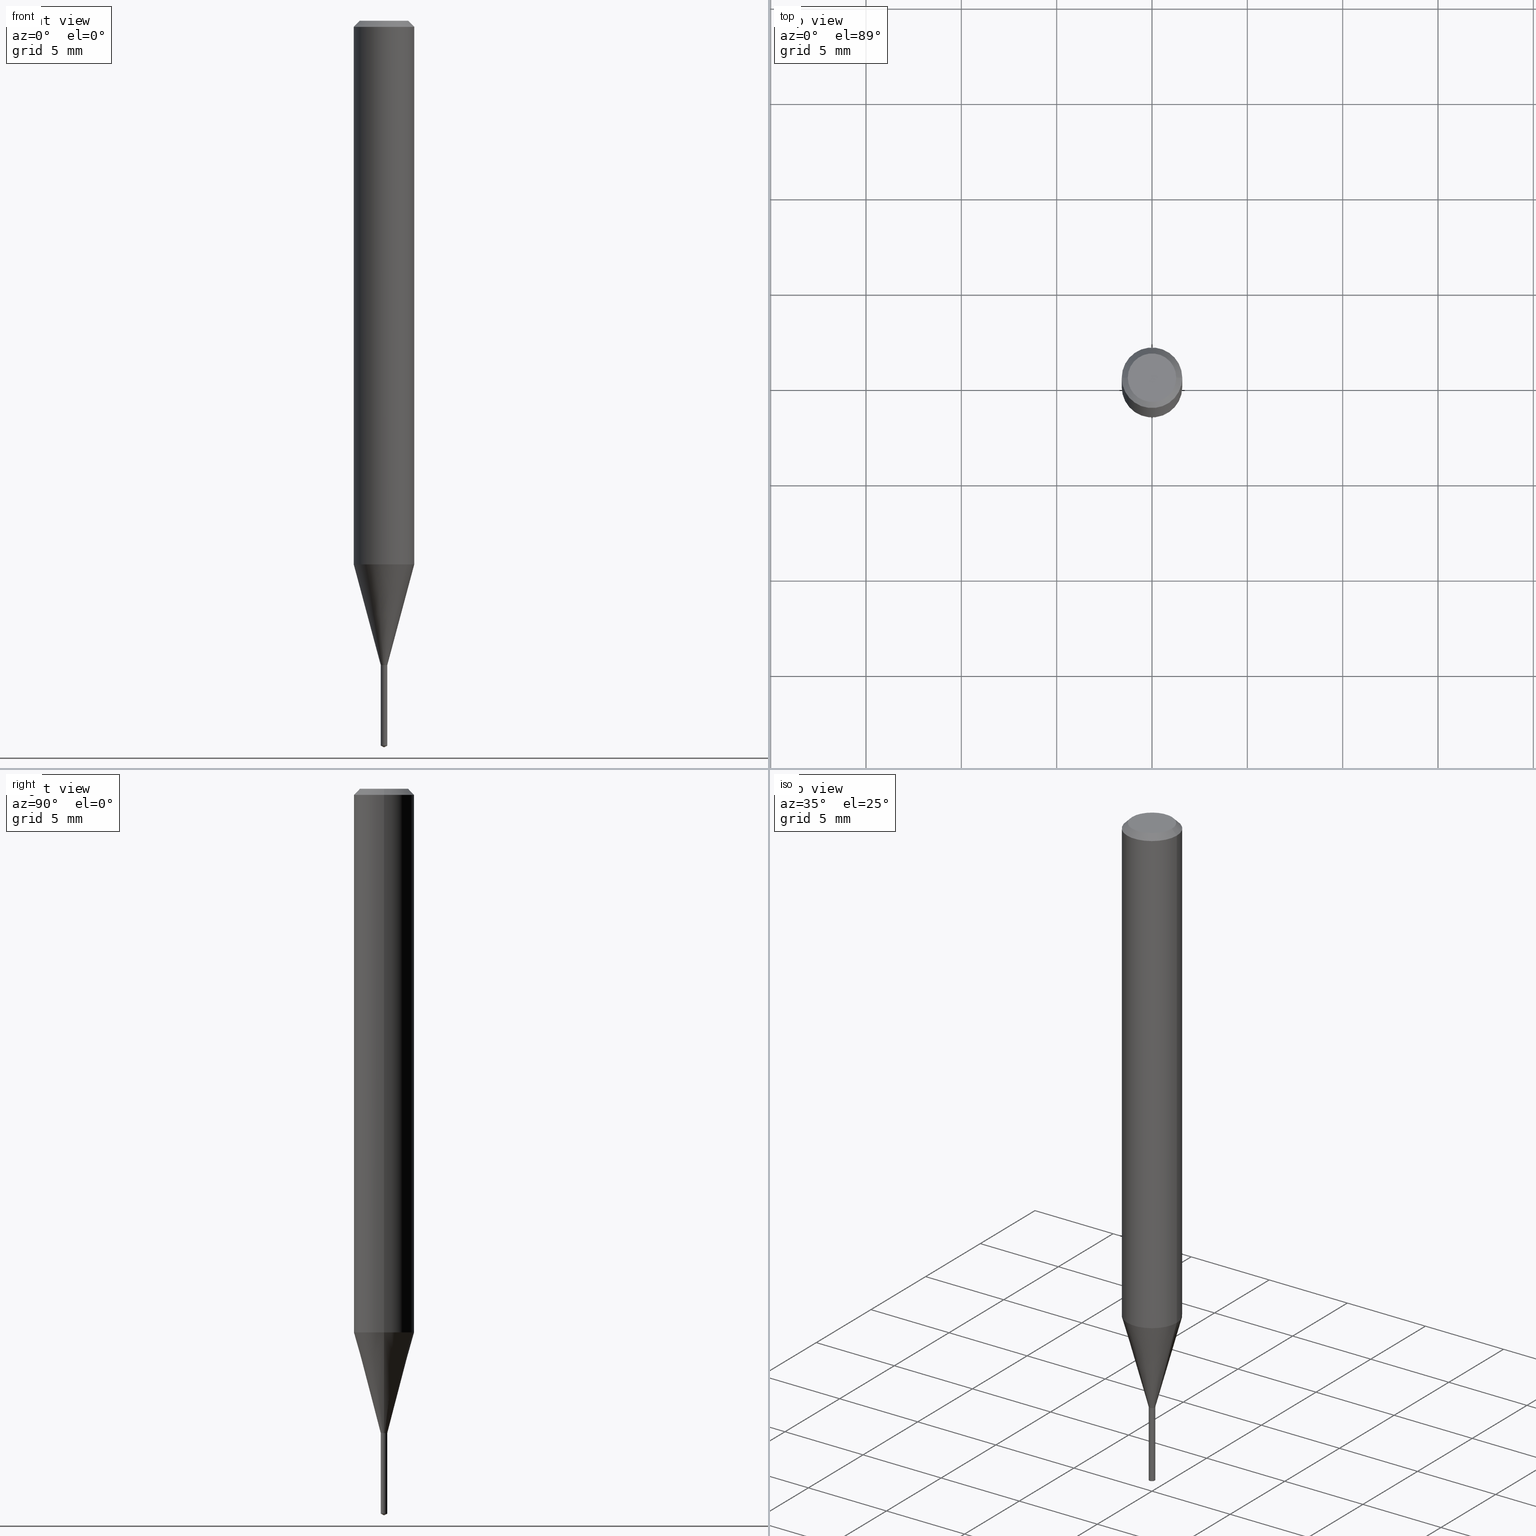
[diagram: canonical four-view strip — front | top / right | iso, engineering-drawing reading convention]
A machine part, canonical four-view strip (front | top / right | iso — engineering-drawing reading convention). The complete STEP part file that produces these views, byte-faithful:
ISO-10303-21;
HEADER;
FILE_DESCRIPTION (( 'STEP AP203' ),
    '1' );
FILE_NAME ('07106.STEP',
    '2024-04-23T19:30:16',
    ( '' ),
    ( '' ),
    'SwSTEP 2.0',
    'SolidWorks 2023',
    '' );
FILE_SCHEMA (( 'CONFIG_CONTROL_DESIGN' ));
ENDSEC;

DATA;
#1 = COORDINATED_UNIVERSAL_TIME_OFFSET ( 5, 0, .BEHIND. ) ;
#2 = CARTESIAN_POINT ( 'NONE',  ( 0.000000000000000000, 0.000000000000000000, 0.000000000000000000 ) ) ;
#3 = LENGTH_MEASURE_WITH_UNIT ( LENGTH_MEASURE( 0.02539999999999999897 ), #9 );
#4 = ADVANCED_FACE ( 'NONE', ( #37 ), #327, .T. ) ;
#5 = DIRECTION ( 'NONE',  ( 1.000000000000000000, -6.982962677686221745E-15, 0.000000000000000000 ) ) ;
#6 = CONICAL_SURFACE ( 'NONE', #266, 0.06250000000000000000, 0.7853981633974449483 ) ;
#7 = DIRECTION ( 'NONE',  ( 1.000000000000000000, -6.982962677686262766E-15, 0.000000000000000000 ) ) ;
#8 = EDGE_LOOP ( 'NONE', ( #234, #310, #256, #213 ) ) ;
#9 =( LENGTH_UNIT ( ) NAMED_UNIT ( * ) SI_UNIT ( $, .METRE. ) );
#10 = DIRECTION ( 'NONE',  ( -6.982962677686265133E-15, -1.000000000000000000, 0.000000000000000000 ) ) ;
#11 = EDGE_CURVE ( 'NONE', #91, #272, #414, .T. ) ;
#12 = DIRECTION ( 'NONE',  ( 1.000000000000000000, -6.982962677686266711E-15, 0.000000000000000000 ) ) ;
#13 = LINE ( 'NONE', #477, #33 ) ;
#14 = VECTOR ( 'NONE', #287, 39.37007874015748143 ) ;
#15 = CIRCLE ( 'NONE', #362, 0.04999999999999999584 ) ;
#16 = DIRECTION ( 'NONE',  ( -2.445468806185136597E-29, 3.491481338843145583E-15, 1.000000000000000000 ) ) ;
#17 = PERSON_AND_ORGANIZATION ( #38, #284 ) ;
#18 = APPLICATION_CONTEXT ( 'configuration controlled 3d designs of mechanical parts and assemblies' ) ;
#19 = LINE ( 'NONE', #285, #182 ) ;
#20 = EDGE_CURVE ( 'NONE', #272, #350, #485, .T. ) ;
#21 = ORIENTED_EDGE ( 'NONE', *, *, #136, .T. ) ;
#22 = PERSON_AND_ORGANIZATION_ROLE ( 'design_supplier' ) ;
#23 = DIRECTION ( 'NONE',  ( -2.441004968667903807E-29, 3.497873808233676026E-15, 1.000000000000000000 ) ) ;
#24 = ORIENTED_EDGE ( 'NONE', *, *, #274, .T. ) ;
#25 = CONICAL_SURFACE ( 'NONE', #89, 0.006249999999999997745, 0.7853981633978196486 ) ;
#26 = CC_DESIGN_APPROVAL ( #373, ( #58 ) ) ;
#27 = DIRECTION ( 'NONE',  ( -1.000000000000000000, 6.982962677686266711E-15, 0.000000000000000000 ) ) ;
#28 = EDGE_LOOP ( 'NONE', ( #371, #139, #88, #326 ) ) ;
#29 = CC_DESIGN_DATE_AND_TIME_ASSIGNMENT ( #389, #55, ( #376 ) ) ;
#30 = EDGE_LOOP ( 'NONE', ( #50, #335, #24, #288 ) ) ;
#31 = EDGE_LOOP ( 'NONE', ( #197, #184, #386, #126 ) ) ;
#32 = AXIS2_PLACEMENT_3D ( 'NONE', #377, #125, #190 ) ;
#33 = VECTOR ( 'NONE', #357, 39.37007874015748143 ) ;
#34 = DIRECTION ( 'NONE',  ( -2.441004968667903807E-29, 3.497873808233676026E-15, 1.000000000000000000 ) ) ;
#35 = ORIENTED_EDGE ( 'NONE', *, *, #59, .F. ) ;
#36 = DIRECTION ( 'NONE',  ( 1.000000000000000000, -6.982962677686296687E-15, 0.000000000000000000 ) ) ;
#37 = FACE_OUTER_BOUND ( 'NONE', #254, .T. ) ;
#38 = PERSON ( 'UNSPECIFIED', 'UNSPECIFIED', 'UNSPECIFIED', ('UNSPECIFIED'), ('UNSPECIFIED'), ('UNSPECIFIED') ) ;
#39 = AXIS2_PLACEMENT_3D ( 'NONE', #81, #413, #380 ) ;
#40 = DIRECTION ( 'NONE',  ( 1.000000000000000000, 0.000000000000000000, 0.000000000000000000 ) ) ;
#41 = DIRECTION ( 'NONE',  ( 2.445468806185136597E-29, -3.491481338843145583E-15, -1.000000000000000000 ) ) ;
#42 = DIRECTION ( 'NONE',  ( -2.445468806185136597E-29, 3.491481338843145583E-15, 1.000000000000000000 ) ) ;
#43 = CARTESIAN_POINT ( 'NONE',  ( 0.006750000000000003393, -4.692201771271302674E-15, -1.330400000000000027 ) ) ;
#44 = APPROVAL_ROLE ( '' ) ;
#45 = CARTESIAN_POINT ( 'NONE',  ( -0.006749999999999994720, -4.499518235112449476E-15, -1.274500000000000188 ) ) ;
#46 = FACE_OUTER_BOUND ( 'NONE', #472, .T. ) ;
#47 = CIRCLE ( 'NONE', #106, 0.06250000000000013878 ) ;
#48 = DIRECTION ( 'NONE',  ( -2.445468806185136877E-29, 3.491481338843145188E-15, 1.000000000000000000 ) ) ;
#49 = EDGE_CURVE ( 'NONE', #181, #175, #70, .T. ) ;
#50 = ORIENTED_EDGE ( 'NONE', *, *, #457, .F. ) ;
#51 = DATE_TIME_ROLE ( 'creation_date' ) ;
#52 = CARTESIAN_POINT ( 'NONE',  ( -0.006749999999999999056, 4.796163466380675584E-17, -3.320281185922061164E-31 ) ) ;
#53 = ORIENTED_EDGE ( 'NONE', *, *, #192, .F. ) ;
#54 = CARTESIAN_POINT ( 'NONE',  ( -4.132873053354867254E-48, 5.900647395337818946E-34, 1.690012582823346072E-19 ) ) ;
#55 = DATE_TIME_ROLE ( 'classification_date' ) ;
#56 = CARTESIAN_POINT ( 'NONE',  ( -8.265746106709734507E-48, 1.180129479067563789E-33, 3.380025165646692144E-19 ) ) ;
#57 = CIRCLE ( 'NONE', #391, 0.06250000000000000000 ) ;
#58 = PRODUCT_DEFINITION_FORMATION_WITH_SPECIFIED_SOURCE ( 'ANY', '', #355, .NOT_KNOWN. ) ;
#59 = EDGE_CURVE ( 'NONE', #114, #239, #423, .T. ) ;
#60 = CARTESIAN_POINT ( 'NONE',  ( 3.117972727886049049E-29, -4.451638707025011594E-15, -1.275000000000000133 ) ) ;
#61 = DIRECTION ( 'NONE',  ( -2.445468806185136597E-29, 3.491481338843145583E-15, 1.000000000000000000 ) ) ;
#62 = COORDINATED_UNIVERSAL_TIME_OFFSET ( 5, 0, .BEHIND. ) ;
#63 = CYLINDRICAL_SURFACE ( 'NONE', #405, 0.06250000000000006939 ) ;
#64 = ORIENTED_EDGE ( 'NONE', *, *, #388, .T. ) ;
#65 = ADVANCED_FACE ( 'NONE', ( #263 ), #217, .T. ) ;
#66 = CONICAL_SURFACE ( 'NONE', #399, 0.006249999999999997745, 0.7853981633978196486 ) ;
#67 = VERTEX_POINT ( 'NONE', #82 ) ;
#68 = ORIENTED_EDGE ( 'NONE', *, *, #11, .T. ) ;
#69 = CARTESIAN_POINT ( 'NONE',  ( 3.056836007731442729E-31, -4.364351673553962300E-17, -0.01250000000000008916 ) ) ;
#70 = LINE ( 'NONE', #450, #445 ) ;
#71 = AXIS2_PLACEMENT_3D ( 'NONE', #390, #396, #282 ) ;
#72 = VECTOR ( 'NONE', #364, 39.37007874015748143 ) ;
#73 = ADVANCED_FACE ( 'NONE', ( #415 ), #338, .F. ) ;
#74 = ORIENTED_EDGE ( 'NONE', *, *, #185, .F. ) ;
#75 = ORIENTED_EDGE ( 'NONE', *, *, #20, .F. ) ;
#76 = CARTESIAN_POINT ( 'NONE',  ( 0.06250000000000000000, -4.724246415962603826E-16, -0.01250000000000008916 ) ) ;
#77 = CARTESIAN_POINT ( 'NONE',  ( 4.203381359286017550E-28, 5.127806036372599119E-14, -1.274999999999999911 ) ) ;
#78 = ADVANCED_FACE ( 'NONE', ( #340 ), #25, .T. ) ;
#79 = AXIS2_PLACEMENT_3D ( 'NONE', #296, #444, #5 ) ;
#80 = CC_DESIGN_APPROVAL ( #336, ( #376 ) ) ;
#81 = CARTESIAN_POINT ( 'NONE',  ( 3.116749993482957368E-29, -4.449892966355590090E-15, -1.274500000000000188 ) ) ;
#82 = CARTESIAN_POINT ( 'NONE',  ( 3.661507453001856271E-29, -5.246810712350514039E-15, -1.500000000000000222 ) ) ;
#83 = LINE ( 'NONE', #121, #134 ) ;
#84 = FACE_OUTER_BOUND ( 'NONE', #140, .T. ) ;
#85 = DIRECTION ( 'NONE',  ( 0.000000000000000000, 0.000000000000000000, 1.000000000000000000 ) ) ;
#86 = EDGE_CURVE ( 'NONE', #239, #114, #260, .T. ) ;
#87 = DIRECTION ( 'NONE',  ( 0.2588190451025279559, 1.565188264969568522E-15, 0.9659258262890662028 ) ) ;
#88 = ORIENTED_EDGE ( 'NONE', *, *, #144, .T. ) ;
#89 = AXIS2_PLACEMENT_3D ( 'NONE', #265, #417, #118 ) ;
#90 = DIRECTION ( 'NONE',  ( 2.441004968667903807E-29, -3.497873808233676026E-15, -1.000000000000000000 ) ) ;
#91 = VERTEX_POINT ( 'NONE', #43 ) ;
#92 = CARTESIAN_POINT ( 'NONE',  ( -0.06250000000000000000, 3.927916506198520587E-16, -0.01250000000000008916 ) ) ;
#93 = PERSON_AND_ORGANIZATION_ROLE ( 'classification_officer' ) ;
#94 = CARTESIAN_POINT ( 'NONE',  ( 3.253451699748706005E-29, -4.645066773196920500E-15, -1.330400000000000027 ) ) ;
#95 = UNCERTAINTY_MEASURE_WITH_UNIT (LENGTH_MEASURE( 1.000000000000000082E-05 ), #229, 'distance_accuracy_value', 'NONE');
#96 = CARTESIAN_POINT ( 'NONE',  ( -0.06250000000000006939, 4.440892098500631092E-16, -3.074334431409319267E-30 ) ) ;
#97 = AXIS2_PLACEMENT_3D ( 'NONE', #2, #349, #312 ) ;
#98 = AXIS2_PLACEMENT_3D ( 'NONE', #428, #202, #475 ) ;
#99 = CALENDAR_DATE ( 2024, 23, 4 ) ;
#100 = FACE_OUTER_BOUND ( 'NONE', #179, .T. ) ;
#101 = ORIENTED_EDGE ( 'NONE', *, *, #361, .T. ) ;
#102 = PERSON_AND_ORGANIZATION_ROLE ( 'creator' ) ;
#103 = DIRECTION ( 'NONE',  ( 1.000000000000000000, -6.982962677686221745E-15, 0.000000000000000000 ) ) ;
#104 = ADVANCED_FACE ( 'NONE', ( #308 ), #189, .F. ) ;
#105 = ORIENTED_EDGE ( 'NONE', *, *, #353, .T. ) ;
#106 = AXIS2_PLACEMENT_3D ( 'NONE', #316, #16, #387 ) ;
#107 = LOCAL_TIME ( 15, 30, 16.00000000000000000, #191 ) ;
#108 = ORIENTED_EDGE ( 'NONE', *, *, #136, .F. ) ;
#109 = ORIENTED_EDGE ( 'NONE', *, *, #480, .F. ) ;
#110 = EDGE_CURVE ( 'NONE', #272, #175, #163, .T. ) ;
#111 = CARTESIAN_POINT ( 'NONE',  ( 0.04999999999999999584, -4.077247707424184705E-16, 3.380025165673154903E-19 ) ) ;
#112 = DIRECTION ( 'NONE',  ( -6.982962677686268288E-15, -1.000000000000000000, 3.520397390770522895E-15 ) ) ;
#113 = CIRCLE ( 'NONE', #32, 0.006749999999999999056 ) ;
#114 = VERTEX_POINT ( 'NONE', #305 ) ;
#115 = CYLINDRICAL_SURFACE ( 'NONE', #315, 0.006749999999999999056 ) ;
#116 = CC_DESIGN_PERSON_AND_ORGANIZATION_ASSIGNMENT ( #203, #93, ( #376 ) ) ;
#117 = DIRECTION ( 'NONE',  ( -0.7071067811868099184, 7.493145998871302371E-15, 0.7071067811862848940 ) ) ;
#118 = DIRECTION ( 'NONE',  ( 1.000000000000000000, -6.982962677686296687E-15, 0.000000000000000000 ) ) ;
#119 = APPROVAL_ROLE ( '' ) ;
#120 = CARTESIAN_POINT ( 'NONE',  ( 3.056836007731442729E-31, -4.364351673553962300E-17, -0.01250000000000008916 ) ) ;
#121 = CARTESIAN_POINT ( 'NONE',  ( 3.672990052264815419E-29, -5.230509915404661862E-15, -1.500000000000000222 ) ) ;
#122 = DIRECTION ( 'NONE',  ( 6.982962677686265922E-15, 1.000000000000000000, -3.497873808233676026E-15 ) ) ;
#123 = ORIENTED_EDGE ( 'NONE', *, *, #381, .F. ) ;
#124 = CARTESIAN_POINT ( 'NONE',  ( 3.661507453001856271E-29, -5.246810712350514039E-15, -1.500000000000000222 ) ) ;
#125 = DIRECTION ( 'NONE',  ( -2.441004968667903807E-29, 3.497873808233676026E-15, 1.000000000000000000 ) ) ;
#126 = ORIENTED_EDGE ( 'NONE', *, *, #283, .F. ) ;
#127 = VECTOR ( 'NONE', #403, 39.37007874015748854 ) ;
#128 = DIRECTION ( 'NONE',  ( -2.441004968667903807E-29, 3.497873808233676026E-15, 1.000000000000000000 ) ) ;
#129 = FACE_OUTER_BOUND ( 'NONE', #435, .T. ) ;
#130 = EDGE_CURVE ( 'NONE', #411, #292, #113, .T. ) ;
#131 = CARTESIAN_POINT ( 'NONE',  ( 3.117972727886049049E-29, -4.451638707025011594E-15, -1.275000000000000133 ) ) ;
#132 = AXIS2_PLACEMENT_3D ( 'NONE', #237, #231, #379 ) ;
#133 = DIRECTION ( 'NONE',  ( -2.445468806185136597E-29, 3.491481338843145583E-15, 1.000000000000000000 ) ) ;
#134 = VECTOR ( 'NONE', #264, 39.37007874015748854 ) ;
#135 = LOCAL_TIME ( 15, 30, 16.00000000000000000, #453 ) ;
#136 = EDGE_CURVE ( 'NONE', #183, #350, #148, .T. ) ;
#137 = APPROVAL_DATE_TIME ( #431, #373 ) ;
#138 = DIRECTION ( 'NONE',  ( -2.441004968667903807E-29, 3.497873808233676026E-15, 1.000000000000000000 ) ) ;
#139 = ORIENTED_EDGE ( 'NONE', *, *, #110, .T. ) ;
#140 = EDGE_LOOP ( 'NONE', ( #370, #143, #433, #408 ) ) ;
#141 = AXIS2_PLACEMENT_3D ( 'NONE', #462, #199, #455 ) ;
#142 = CIRCLE ( 'NONE', #174, 0.04999999999999999584 ) ;
#143 = ORIENTED_EDGE ( 'NONE', *, *, #255, .T. ) ;
#144 = EDGE_CURVE ( 'NONE', #175, #439, #209, .T. ) ;
#145 = DIRECTION ( 'NONE',  ( -6.982962677686265133E-15, -1.000000000000000000, 0.000000000000000000 ) ) ;
#146 = FACE_OUTER_BOUND ( 'NONE', #490, .T. ) ;
#147 = ORIENTED_EDGE ( 'NONE', *, *, #480, .T. ) ;
#148 = CIRCLE ( 'NONE', #352, 0.06250000000000013878 ) ;
#149 = CONICAL_SURFACE ( 'NONE', #195, 0.06250000000000000000, 0.7853981633974449483 ) ;
#150 = ADVANCED_FACE ( 'NONE', ( #158 ), #224, .F. ) ;
#151 = DIRECTION ( 'NONE',  ( 0.7071067811865451302, -7.319954787623248157E-15, -0.7071067811865499042 ) ) ;
#152 = DIRECTION ( 'NONE',  ( -2.445468806185136597E-29, 3.491481338843145583E-15, 1.000000000000000000 ) ) ;
#153 = DATE_AND_TIME ( #384, #267 ) ;
#154 = CARTESIAN_POINT ( 'NONE',  ( 3.056836007731442729E-31, -4.364351673553962300E-17, -0.01250000000000008916 ) ) ;
#155 = DIRECTION ( 'NONE',  ( -2.445468806185136877E-29, 3.491481338843145188E-15, 1.000000000000000000 ) ) ;
#156 = CONICAL_SURFACE ( 'NONE', #489, 84.42940631927268669, 1.134464013796308457 ) ;
#157 = AXIS2_PLACEMENT_3D ( 'NONE', #60, #138, #206 ) ;
#158 = FACE_OUTER_BOUND ( 'NONE', #215, .T. ) ;
#159 = ADVANCED_FACE ( 'NONE', ( #314 ), #6, .T. ) ;
#160 = ORIENTED_EDGE ( 'NONE', *, *, #283, .T. ) ;
#161 = MECHANICAL_CONTEXT ( 'NONE', #180, 'mechanical' ) ;
#162 = DIRECTION ( 'NONE',  ( -6.982962677686268288E-15, -1.000000000000000000, 3.520397390770522895E-15 ) ) ;
#163 = LINE ( 'NONE', #52, #398 ) ;
#164 = AXIS2_PLACEMENT_3D ( 'NONE', #369, #34, #145 ) ;
#165 = PRODUCT_RELATED_PRODUCT_CATEGORY ( 'detail', '', ( #355 ) ) ;
#166 = LOCAL_TIME ( 15, 30, 16.00000000000000000, #280 ) ;
#167 = DIRECTION ( 'NONE',  ( 1.000000000000000000, -6.982962677686266711E-15, 4.876176775795935793E-29 ) ) ;
#168 = FACE_OUTER_BOUND ( 'NONE', #31, .T. ) ;
#169 = DIRECTION ( 'NONE',  ( 1.000000000000000000, -6.982962677686265922E-15, 4.876194921942043128E-29 ) ) ;
#170 = ADVANCED_FACE ( 'NONE', ( #84 ), #375, .T. ) ;
#171 = PERSON_AND_ORGANIZATION ( #38, #284 ) ;
#172 = CIRCLE ( 'NONE', #277, 0.006249999999999997745 ) ;
#173 = CARTESIAN_POINT ( 'NONE',  ( -0.06250000000000000000, -1.537043932328202372E-15, -0.01250000000000008916 ) ) ;
#174 = AXIS2_PLACEMENT_3D ( 'NONE', #56, #471, #169 ) ;
#175 = VERTEX_POINT ( 'NONE', #45 ) ;
#176 = ADVANCED_BREP_SHAPE_REPRESENTATION ( '07106', ( #409, #230, #204 ), #406 ) ;
#177 = CARTESIAN_POINT ( 'NONE',  ( 0.06250000000000000000, -4.800786840909313294E-16, -0.01250000000000008916 ) ) ;
#178 = EDGE_LOOP ( 'NONE', ( #401, #290, #262 ) ) ;
#179 = EDGE_LOOP ( 'NONE', ( #21, #101, #74, #248 ) ) ;
#180 = APPLICATION_CONTEXT ( 'configuration controlled 3d designs of mechanical parts and assemblies' ) ;
#181 = VERTEX_POINT ( 'NONE', #459 ) ;
#182 = VECTOR ( 'NONE', #432, 39.37007874015748143 ) ;
#183 = VERTEX_POINT ( 'NONE', #420 ) ;
#184 = ORIENTED_EDGE ( 'NONE', *, *, #86, .T. ) ;
#185 = EDGE_CURVE ( 'NONE', #319, #330, #57, .T. ) ;
#186 = CARTESIAN_POINT ( 'NONE',  ( 3.253451699748706005E-29, -4.645066773196920500E-15, -1.330400000000000027 ) ) ;
#187 = AXIS2_PLACEMENT_3D ( 'NONE', #131, #23, #469 ) ;
#188 = PERSON_AND_ORGANIZATION_ROLE ( 'creator' ) ;
#189 = PLANE ( 'NONE',  #374 ) ;
#190 = DIRECTION ( 'NONE',  ( -6.982962677686265133E-15, -1.000000000000000000, 0.000000000000000000 ) ) ;
#191 = COORDINATED_UNIVERSAL_TIME_OFFSET ( 5, 0, .BEHIND. ) ;
#192 = EDGE_CURVE ( 'NONE', #91, #183, #342, .T. ) ;
#193 = DIRECTION ( 'NONE',  ( 1.000000000000000000, -6.982962677686265922E-15, 4.876176775795935793E-29 ) ) ;
#194 = AXIS2_PLACEMENT_3D ( 'NONE', #257, #216, #112 ) ;
#195 = AXIS2_PLACEMENT_3D ( 'NONE', #207, #363, #27 ) ;
#196 = CARTESIAN_POINT ( 'NONE',  ( -9.243535897573469327E-28, 1.324729069394167476E-13, 37.87007874015748143 ) ) ;
#197 = ORIENTED_EDGE ( 'NONE', *, *, #418, .F. ) ;
#198 = PERSON_AND_ORGANIZATION ( #38, #284 ) ;
#199 = DIRECTION ( 'NONE',  ( -2.445468806185136597E-29, 3.491481338843145583E-15, 1.000000000000000000 ) ) ;
#200 = CC_DESIGN_PERSON_AND_ORGANIZATION_ASSIGNMENT ( #245, #102, ( #58 ) ) ;
#201 = ORIENTED_EDGE ( 'NONE', *, *, #322, .T. ) ;
#202 = DIRECTION ( 'NONE',  ( -2.445468806185136597E-29, 3.491481338843145583E-15, 1.000000000000000000 ) ) ;
#203 = PERSON_AND_ORGANIZATION ( #38, #284 ) ;
#204 = AXIS2_PLACEMENT_3D ( 'NONE', #458, #85, #40 ) ;
#205 = CARTESIAN_POINT ( 'NONE',  ( -0.06250000000000013878, -3.474533557770928981E-15, -1.122338167478040827 ) ) ;
#206 = DIRECTION ( 'NONE',  ( -6.982962677686265133E-15, -1.000000000000000000, 0.000000000000000000 ) ) ;
#207 = CARTESIAN_POINT ( 'NONE',  ( 3.056836007731442729E-31, -4.364351673553962300E-17, -0.01250000000000008916 ) ) ;
#208 = EDGE_CURVE ( 'NONE', #91, #439, #233, .T. ) ;
#209 = CIRCLE ( 'NONE', #141, 0.006749999999999994720 ) ;
#210 = CARTESIAN_POINT ( 'NONE',  ( 0.006249999999999997745, -4.495282223760549972E-15, -1.274999999999999911 ) ) ;
#211 = CIRCLE ( 'NONE', #39, 0.006749999999999994720 ) ;
#212 = CARTESIAN_POINT ( 'NONE',  ( 4.796163466383792817E-17, 0.006749999999995546889, -1.275000000000000133 ) ) ;
#213 = ORIENTED_EDGE ( 'NONE', *, *, #274, .F. ) ;
#214 = ADVANCED_FACE ( 'NONE', ( #422 ), #156, .T. ) ;
#215 = EDGE_LOOP ( 'NONE', ( #345, #160 ) ) ;
#216 = DIRECTION ( 'NONE',  ( -2.441004968667903807E-29, 3.497873808233676026E-15, 1.000000000000000000 ) ) ;
#217 = CONICAL_SURFACE ( 'NONE', #79, 0.006750000000000003393, 0.2617993877991569573 ) ;
#218 = VECTOR ( 'NONE', #339, 39.37007874015748143 ) ;
#219 = PRODUCT_DEFINITION ( 'UNKNOWN', '', #58, #252 ) ;
#220 = EDGE_LOOP ( 'NONE', ( #366, #484, #109, #481 ) ) ;
#221 = CARTESIAN_POINT ( 'NONE',  ( 0.006749999999999994720, -4.497027964429972265E-15, -1.274500000000000188 ) ) ;
#222 = ORIENTED_EDGE ( 'NONE', *, *, #426, .T. ) ;
#223 = APPROVAL_STATUS ( 'not_yet_approved' ) ;
#224 = PLANE ( 'NONE',  #436 ) ;
#225 = CONICAL_SURFACE ( 'NONE', #276, 0.006750000000000003393, 0.2617993877991569573 ) ;
#226 = CC_DESIGN_SECURITY_CLASSIFICATION ( #376, ( #58 ) ) ;
#227 = DIRECTION ( 'NONE',  ( -2.438088387897960049E-29, 3.491481338843145188E-15, 1.000000000000000000 ) ) ;
#228 = CC_DESIGN_PERSON_AND_ORGANIZATION_ASSIGNMENT ( #17, #22, ( #58 ) ) ;
#229 =( CONVERSION_BASED_UNIT ( 'INCH', #3 ) LENGTH_UNIT ( ) NAMED_UNIT ( #372 ) );
#230 = MANIFOLD_SOLID_BREP ( 'Body-Move/Copy2[2]', #473 ) ;
#231 = DIRECTION ( 'NONE',  ( -2.445468806185136597E-29, 3.491481338843145583E-15, 1.000000000000000000 ) ) ;
#232 = APPLICATION_PROTOCOL_DEFINITION ( 'international standard', 'config_control_design', 1994, #18 ) ;
#233 = LINE ( 'NONE', #382, #367 ) ;
#234 = ORIENTED_EDGE ( 'NONE', *, *, #322, .F. ) ;
#235 = APPROVAL_PERSON_ORGANIZATION ( #198, #373, #44 ) ;
#236 = PERSON_AND_ORGANIZATION ( #38, #284 ) ;
#237 = CARTESIAN_POINT ( 'NONE',  ( 0.000000000000000000, 0.000000000000000000, 0.000000000000000000 ) ) ;
#238 = CC_DESIGN_DATE_AND_TIME_ASSIGNMENT ( #153, #51, ( #219 ) ) ;
#239 = VERTEX_POINT ( 'NONE', #275 ) ;
#240 = DIRECTION ( 'NONE',  ( 1.000000000000000000, -6.982962677686296687E-15, 0.000000000000000000 ) ) ;
#241 = CALENDAR_DATE ( 2024, 23, 4 ) ;
#242 = LINE ( 'NONE', #92, #14 ) ;
#243 = VECTOR ( 'NONE', #404, 39.37007874015748854 ) ;
#244 = DIRECTION ( 'NONE',  ( -2.445468806185136877E-29, 3.491481338843145188E-15, 1.000000000000000000 ) ) ;
#245 = PERSON_AND_ORGANIZATION ( #38, #284 ) ;
#246 = ADVANCED_FACE ( 'NONE', ( #100 ), #63, .T. ) ;
#247 = CARTESIAN_POINT ( 'NONE',  ( -8.265746106709734507E-48, 1.180129479067563789E-33, 3.380025165646692144E-19 ) ) ;
#248 = ORIENTED_EDGE ( 'NONE', *, *, #343, .F. ) ;
#249 = DATE_AND_TIME ( #99, #437 ) ;
#250 = FACE_OUTER_BOUND ( 'NONE', #30, .T. ) ;
#251 = ORIENTED_EDGE ( 'NONE', *, *, #394, .F. ) ;
#252 = DESIGN_CONTEXT ( 'detailed design', #18, 'design' ) ;
#253 = CIRCLE ( 'NONE', #383, 0.006249999999999997745 ) ;
#254 = EDGE_LOOP ( 'NONE', ( #476, #400, #35 ) ) ;
#255 = EDGE_CURVE ( 'NONE', #350, #183, #47, .T. ) ;
#256 = ORIENTED_EDGE ( 'NONE', *, *, #185, .T. ) ;
#257 = CARTESIAN_POINT ( 'NONE',  ( -9.243535897573469327E-28, 1.324729069394167476E-13, 37.87007874015748143 ) ) ;
#258 = ADVANCED_FACE ( 'NONE', ( #129 ), #225, .T. ) ;
#259 = DIRECTION ( 'NONE',  ( 1.000000000000000000, -6.982962677686266711E-15, 0.000000000000000000 ) ) ;
#260 = CIRCLE ( 'NONE', #429, 0.006749999999999999924 ) ;
#261 = VERTEX_POINT ( 'NONE', #210 ) ;
#262 = ORIENTED_EDGE ( 'NONE', *, *, #86, .F. ) ;
#263 = FACE_OUTER_BOUND ( 'NONE', #300, .T. ) ;
#264 = DIRECTION ( 'NONE',  ( 6.439704144417007476E-15, 0.9063077870366490485, 0.4226182617407015507 ) ) ;
#265 = CARTESIAN_POINT ( 'NONE',  ( 3.117972727886048488E-29, -4.451638707025010805E-15, -1.274999999999999911 ) ) ;
#266 = AXIS2_PLACEMENT_3D ( 'NONE', #120, #41, #269 ) ;
#267 = LOCAL_TIME ( 15, 30, 16.00000000000000000, #1 ) ;
#268 = PERSON_AND_ORGANIZATION ( #38, #284 ) ;
#269 = DIRECTION ( 'NONE',  ( -1.000000000000000000, 6.982962677686266711E-15, 0.000000000000000000 ) ) ;
#270 = CALENDAR_DATE ( 2024, 23, 4 ) ;
#271 = CARTESIAN_POINT ( 'NONE',  ( 3.117972727886049049E-29, -4.451638707025011594E-15, -1.275000000000000133 ) ) ;
#272 = VERTEX_POINT ( 'NONE', #318 ) ;
#273 = PERSON_AND_ORGANIZATION ( #38, #284 ) ;
#274 = EDGE_CURVE ( 'NONE', #449, #330, #242, .T. ) ;
#275 = CARTESIAN_POINT ( 'NONE',  ( 4.796163466384336392E-17, 0.006749999999994773202, -1.496852423307453828 ) ) ;
#276 = AXIS2_PLACEMENT_3D ( 'NONE', #94, #133, #103 ) ;
#277 = AXIS2_PLACEMENT_3D ( 'NONE', #427, #279, #240 ) ;
#278 = APPROVAL_STATUS ( 'not_yet_approved' ) ;
#279 = DIRECTION ( 'NONE',  ( -2.445468806185136597E-29, 3.491481338843145583E-15, 1.000000000000000000 ) ) ;
#280 = COORDINATED_UNIVERSAL_TIME_OFFSET ( 5, 0, .BEHIND. ) ;
#281 = CYLINDRICAL_SURFACE ( 'NONE', #187, 0.006749999999999999056 ) ;
#282 = DIRECTION ( 'NONE',  ( -6.982962677686265133E-15, -1.000000000000000000, 0.000000000000000000 ) ) ;
#283 = EDGE_CURVE ( 'NONE', #292, #411, #344, .T. ) ;
#284 = ORGANIZATION ( 'UNSPECIFIED', 'UNSPECIFIED', '' ) ;
#285 = CARTESIAN_POINT ( 'NONE',  ( -4.713499807435110652E-17, -0.006750000000004451224, -1.275000000000000133 ) ) ;
#286 = ORIENTED_EDGE ( 'NONE', *, *, #110, .F. ) ;
#287 = DIRECTION ( 'NONE',  ( -0.7071067811865451302, 2.468850131082231817E-15, -0.7071067811865499042 ) ) ;
#288 = ORIENTED_EDGE ( 'NONE', *, *, #440, .T. ) ;
#289 = ADVANCED_FACE ( 'NONE', ( #168 ), #281, .T. ) ;
#290 = ORIENTED_EDGE ( 'NONE', *, *, #464, .T. ) ;
#291 = VECTOR ( 'NONE', #244, 39.37007874015748143 ) ;
#292 = VERTEX_POINT ( 'NONE', #468 ) ;
#293 = LINE ( 'NONE', #212, #72 ) ;
#294 = ORIENTED_EDGE ( 'NONE', *, *, #418, .T. ) ;
#295 = DIRECTION ( 'NONE',  ( -2.445468806185136597E-29, 3.491481338843145583E-15, 1.000000000000000000 ) ) ;
#296 = CARTESIAN_POINT ( 'NONE',  ( 3.253451699748706005E-29, -4.645066773196920500E-15, -1.330400000000000027 ) ) ;
#297 = CC_DESIGN_PERSON_AND_ORGANIZATION_ASSIGNMENT ( #273, #311, ( #355 ) ) ;
#298 = CARTESIAN_POINT ( 'NONE',  ( 3.117972727886048488E-29, -4.451638707025010805E-15, -1.274999999999999911 ) ) ;
#299 = CLOSED_SHELL ( 'NONE', ( #368, #4, #214, #289, #150 ) ) ;
#300 = EDGE_LOOP ( 'NONE', ( #75, #105, #460, #333 ) ) ;
#301 = DIRECTION ( 'NONE',  ( 1.000000000000000000, -6.982962677686221745E-15, 0.000000000000000000 ) ) ;
#302 = DIRECTION ( 'NONE',  ( 1.000000000000000000, -6.982962677686266711E-15, 4.876176775795935793E-29 ) ) ;
#303 = ADVANCED_FACE ( 'NONE', ( #250 ), #149, .T. ) ;
#304 = CARTESIAN_POINT ( 'NONE',  ( 2.744642978558538366E-29, -3.918622767620992781E-15, -1.122338167478040827 ) ) ;
#305 = CARTESIAN_POINT ( 'NONE',  ( -4.713499807434570775E-17, -0.006750000000005229248, -1.496852423307453828 ) ) ;
#306 = CIRCLE ( 'NONE', #98, 0.006750000000000003393 ) ;
#307 =( NAMED_UNIT ( * ) SI_UNIT ( $, .STERADIAN. ) SOLID_ANGLE_UNIT ( ) );
#308 = FACE_OUTER_BOUND ( 'NONE', #463, .T. ) ;
#309 = EDGE_CURVE ( 'NONE', #181, #261, #172, .T. ) ;
#310 = ORIENTED_EDGE ( 'NONE', *, *, #457, .T. ) ;
#311 = PERSON_AND_ORGANIZATION_ROLE ( 'design_owner' ) ;
#312 = DIRECTION ( 'NONE',  ( 1.000000000000000000, -6.982962677686266711E-15, 4.876176775795935793E-29 ) ) ;
#313 = ORIENTED_EDGE ( 'NONE', *, *, #20, .T. ) ;
#314 = FACE_OUTER_BOUND ( 'NONE', #8, .T. ) ;
#315 = AXIS2_PLACEMENT_3D ( 'NONE', #451, #42, #302 ) ;
#316 = CARTESIAN_POINT ( 'NONE',  ( 2.744642978558538366E-29, -3.918622767620992781E-15, -1.122338167478040827 ) ) ;
#317 = PLANE ( 'NONE',  #407 ) ;
#318 = CARTESIAN_POINT ( 'NONE',  ( -0.006750000000000003393, -4.499518235112449476E-15, -1.330400000000000027 ) ) ;
#319 = VERTEX_POINT ( 'NONE', #177 ) ;
#320 = CARTESIAN_POINT ( 'NONE',  ( 0.000000000000000000, 0.000000000000000000, 0.000000000000000000 ) ) ;
#321 = ORIENTED_EDGE ( 'NONE', *, *, #59, .T. ) ;
#322 = EDGE_CURVE ( 'NONE', #397, #449, #142, .T. ) ;
#323 = DIRECTION ( 'NONE',  ( -1.000000000000000000, 6.982962677686265922E-15, -4.876176775795935793E-29 ) ) ;
#324 = ORIENTED_EDGE ( 'NONE', *, *, #49, .F. ) ;
#325 = CARTESIAN_POINT ( 'NONE',  ( -4.713499807435110652E-17, -0.006750000000004451224, -1.275000000000000133 ) ) ;
#326 = ORIENTED_EDGE ( 'NONE', *, *, #208, .F. ) ;
#327 = CONICAL_SURFACE ( 'NONE', #194, 84.42940631927268669, 1.134464013796308457 ) ;
#328 = APPROVAL_PERSON_ORGANIZATION ( #171, #336, #348 ) ;
#329 = ORIENTED_EDGE ( 'NONE', *, *, #144, .F. ) ;
#330 = VERTEX_POINT ( 'NONE', #173 ) ;
#331 = ADVANCED_FACE ( 'NONE', ( #425 ), #317, .F. ) ;
#332 = CARTESIAN_POINT ( 'NONE',  ( 3.117972727886048488E-29, -4.451638707025010805E-15, -1.274999999999999911 ) ) ;
#333 = ORIENTED_EDGE ( 'NONE', *, *, #255, .F. ) ;
#334 = AXIS2_PLACEMENT_3D ( 'NONE', #186, #152, #301 ) ;
#335 = ORIENTED_EDGE ( 'NONE', *, *, #388, .F. ) ;
#336 = APPROVAL ( #278, 'UNSPECIFIED' ) ;
#337 = LINE ( 'NONE', #124, #218 ) ;
#338 = CYLINDRICAL_SURFACE ( 'NONE', #97, 0.006749999999999999056 ) ;
#339 = DIRECTION ( 'NONE',  ( -6.328713451373352024E-15, -0.9063077870366459399, 0.4226182617407078790 ) ) ;
#340 = FACE_OUTER_BOUND ( 'NONE', #220, .T. ) ;
#341 = APPLICATION_PROTOCOL_DEFINITION ( 'international standard', 'config_control_design', 1994, #180 ) ;
#342 = LINE ( 'NONE', #465, #454 ) ;
#343 = EDGE_CURVE ( 'NONE', #183, #319, #13, .T. ) ;
#344 = CIRCLE ( 'NONE', #71, 0.006749999999999999056 ) ;
#345 = ORIENTED_EDGE ( 'NONE', *, *, #130, .T. ) ;
#346 = DIRECTION ( 'NONE',  ( -2.441004968667903807E-29, 3.497873808233676026E-15, 1.000000000000000000 ) ) ;
#347 = EDGE_LOOP ( 'NONE', ( #64, #201 ) ) ;
#348 = APPROVAL_ROLE ( '' ) ;
#349 = DIRECTION ( 'NONE',  ( -2.445468806185136597E-29, 3.491481338843145583E-15, 1.000000000000000000 ) ) ;
#350 = VERTEX_POINT ( 'NONE', #205 ) ;
#351 = FACE_OUTER_BOUND ( 'NONE', #488, .T. ) ;
#352 = AXIS2_PLACEMENT_3D ( 'NONE', #304, #385, #7 ) ;
#353 = EDGE_CURVE ( 'NONE', #272, #91, #306, .T. ) ;
#354 = LINE ( 'NONE', #96, #291 ) ;
#355 = PRODUCT ( '07106', '07106', '', ( #161 ) ) ;
#356 = CALENDAR_DATE ( 2024, 23, 4 ) ;
#357 = DIRECTION ( 'NONE',  ( -2.445468806185136877E-29, 3.491481338843145188E-15, 1.000000000000000000 ) ) ;
#358 = SECURITY_CLASSIFICATION_LEVEL ( 'unclassified' ) ;
#359 = DIRECTION ( 'NONE',  ( 1.000000000000000000, -6.982962677686265922E-15, 4.876194921942043128E-29 ) ) ;
#360 = ORIENTED_EDGE ( 'NONE', *, *, #208, .T. ) ;
#361 = EDGE_CURVE ( 'NONE', #350, #330, #354, .T. ) ;
#362 = AXIS2_PLACEMENT_3D ( 'NONE', #247, #61, #359 ) ;
#363 = DIRECTION ( 'NONE',  ( 2.445468806185136597E-29, -3.491481338843145583E-15, -1.000000000000000000 ) ) ;
#364 = DIRECTION ( 'NONE',  ( -2.441004968667903807E-29, 3.497873808233676026E-15, 1.000000000000000000 ) ) ;
#365 = ORIENTED_EDGE ( 'NONE', *, *, #11, .F. ) ;
#366 = ORIENTED_EDGE ( 'NONE', *, *, #394, .T. ) ;
#367 = VECTOR ( 'NONE', #48, 39.37007874015748143 ) ;
#368 = ADVANCED_FACE ( 'NONE', ( #351 ), #392, .T. ) ;
#369 = CARTESIAN_POINT ( 'NONE',  ( 3.659515595490558765E-29, -5.227650487805323058E-15, -1.496852423307453828 ) ) ;
#370 = ORIENTED_EDGE ( 'NONE', *, *, #361, .F. ) ;
#371 = ORIENTED_EDGE ( 'NONE', *, *, #353, .F. ) ;
#372 = DIMENSIONAL_EXPONENTS ( 1.000000000000000000, 0.000000000000000000, 0.000000000000000000, 0.000000000000000000, 0.000000000000000000, 0.000000000000000000, 0.000000000000000000 ) ;
#373 = APPROVAL ( #378, 'UNSPECIFIED' ) ;
#374 = AXIS2_PLACEMENT_3D ( 'NONE', #77, #227, #193 ) ;
#375 = CYLINDRICAL_SURFACE ( 'NONE', #132, 0.06250000000000006939 ) ;
#376 = SECURITY_CLASSIFICATION ( '', '', #358 ) ;
#377 = CARTESIAN_POINT ( 'NONE',  ( 3.117972727886049049E-29, -4.451638707025011594E-15, -1.275000000000000133 ) ) ;
#378 = APPROVAL_STATUS ( 'not_yet_approved' ) ;
#379 = DIRECTION ( 'NONE',  ( 1.000000000000000000, -6.982962677686266711E-15, 4.876176775795935793E-29 ) ) ;
#380 = DIRECTION ( 'NONE',  ( 1.000000000000000000, -6.982962677686230423E-15, 0.000000000000000000 ) ) ;
#381 = EDGE_CURVE ( 'NONE', #114, #411, #19, .T. ) ;
#382 = CARTESIAN_POINT ( 'NONE',  ( 0.006749999999999999056, -4.713499807438229118E-17, 3.291419323662256275E-31 ) ) ;
#383 = AXIS2_PLACEMENT_3D ( 'NONE', #332, #443, #438 ) ;
#384 = CALENDAR_DATE ( 2024, 23, 4 ) ;
#385 = DIRECTION ( 'NONE',  ( -2.445468806185136597E-29, 3.491481338843145583E-15, 1.000000000000000000 ) ) ;
#386 = ORIENTED_EDGE ( 'NONE', *, *, #381, .T. ) ;
#387 = DIRECTION ( 'NONE',  ( 1.000000000000000000, -6.982962677686262766E-15, 0.000000000000000000 ) ) ;
#388 = EDGE_CURVE ( 'NONE', #449, #397, #15, .T. ) ;
#389 = DATE_AND_TIME ( #241, #166 ) ;
#390 = CARTESIAN_POINT ( 'NONE',  ( 3.117972727886049049E-29, -4.451638707025011594E-15, -1.275000000000000133 ) ) ;
#391 = AXIS2_PLACEMENT_3D ( 'NONE', #154, #452, #12 ) ;
#392 = CYLINDRICAL_SURFACE ( 'NONE', #157, 0.006749999999999999056 ) ;
#393 = DIRECTION ( 'NONE',  ( 2.438088387897960049E-29, -3.491481338843145188E-15, -1.000000000000000000 ) ) ;
#394 = EDGE_CURVE ( 'NONE', #261, #181, #253, .T. ) ;
#395 = ORIENTED_EDGE ( 'NONE', *, *, #309, .F. ) ;
#396 = DIRECTION ( 'NONE',  ( -2.441004968667903807E-29, 3.497873808233676026E-15, 1.000000000000000000 ) ) ;
#397 = VERTEX_POINT ( 'NONE', #111 ) ;
#398 = VECTOR ( 'NONE', #155, 39.37007874015748143 ) ;
#399 = AXIS2_PLACEMENT_3D ( 'NONE', #298, #448, #36 ) ;
#400 = ORIENTED_EDGE ( 'NONE', *, *, #474, .T. ) ;
#401 = ORIENTED_EDGE ( 'NONE', *, *, #474, .F. ) ;
#402 = CC_DESIGN_PERSON_AND_ORGANIZATION_ASSIGNMENT ( #268, #188, ( #219 ) ) ;
#403 = DIRECTION ( 'NONE',  ( 0.7071067811868099184, -2.468850131085007030E-15, 0.7071067811862848940 ) ) ;
#404 = DIRECTION ( 'NONE',  ( -0.2588190451025279559, 5.211531920934590485E-15, 0.9659258262890662028 ) ) ;
#405 = AXIS2_PLACEMENT_3D ( 'NONE', #320, #434, #167 ) ;
#406 =( GEOMETRIC_REPRESENTATION_CONTEXT ( 3 ) GLOBAL_UNCERTAINTY_ASSIGNED_CONTEXT ( ( #95 ) ) GLOBAL_UNIT_ASSIGNED_CONTEXT ( ( #229, #419, #307 ) ) REPRESENTATION_CONTEXT ( 'NONE', 'WORKASPACE' ) );
#407 = AXIS2_PLACEMENT_3D ( 'NONE', #54, #393, #323 ) ;
#408 = ORIENTED_EDGE ( 'NONE', *, *, #440, .F. ) ;
#409 = MANIFOLD_SOLID_BREP ( 'Body-Move/Copy2[1]', #299 ) ;
#410 = APPROVAL ( #223, 'UNSPECIFIED' ) ;
#411 = VERTEX_POINT ( 'NONE', #325 ) ;
#412 = CARTESIAN_POINT ( 'NONE',  ( 3.659515595490558765E-29, -5.227650487805323058E-15, -1.496852423307453828 ) ) ;
#413 = DIRECTION ( 'NONE',  ( -2.445468806185136597E-29, 3.491481338843145583E-15, 1.000000000000000000 ) ) ;
#414 = CIRCLE ( 'NONE', #334, 0.006750000000000003393 ) ;
#415 = FACE_OUTER_BOUND ( 'NONE', #28, .T. ) ;
#416 = LINE ( 'NONE', #76, #466 ) ;
#417 = DIRECTION ( 'NONE',  ( -2.445468806185136597E-29, 3.491481338843145583E-15, 1.000000000000000000 ) ) ;
#418 = EDGE_CURVE ( 'NONE', #239, #292, #293, .T. ) ;
#419 =( NAMED_UNIT ( * ) PLANE_ANGLE_UNIT ( ) SI_UNIT ( $, .RADIAN. ) );
#420 = CARTESIAN_POINT ( 'NONE',  ( 0.06250000000000013878, -4.355057934976385239E-15, -1.122338167478040827 ) ) ;
#421 = DATE_AND_TIME ( #270, #135 ) ;
#422 = FACE_OUTER_BOUND ( 'NONE', #178, .T. ) ;
#423 = CIRCLE ( 'NONE', #164, 0.006749999999999999924 ) ;
#424 = ORIENTED_EDGE ( 'NONE', *, *, #130, .F. ) ;
#425 = FACE_OUTER_BOUND ( 'NONE', #347, .T. ) ;
#426 = EDGE_CURVE ( 'NONE', #261, #439, #441, .T. ) ;
#427 = CARTESIAN_POINT ( 'NONE',  ( 3.117972727886048488E-29, -4.451638707025010805E-15, -1.274999999999999911 ) ) ;
#428 = CARTESIAN_POINT ( 'NONE',  ( 3.253451699748706005E-29, -4.645066773196920500E-15, -1.330400000000000027 ) ) ;
#429 = AXIS2_PLACEMENT_3D ( 'NONE', #412, #128, #10 ) ;
#430 = AXIS2_PLACEMENT_3D ( 'NONE', #69, #295, #259 ) ;
#431 = DATE_AND_TIME ( #356, #107 ) ;
#432 = DIRECTION ( 'NONE',  ( -2.441004968667903807E-29, 3.497873808233676026E-15, 1.000000000000000000 ) ) ;
#433 = ORIENTED_EDGE ( 'NONE', *, *, #343, .T. ) ;
#434 = DIRECTION ( 'NONE',  ( -2.445468806185136597E-29, 3.491481338843145583E-15, 1.000000000000000000 ) ) ;
#435 = EDGE_LOOP ( 'NONE', ( #68, #313, #108, #53 ) ) ;
#436 = AXIS2_PLACEMENT_3D ( 'NONE', #271, #90, #122 ) ;
#437 = LOCAL_TIME ( 15, 30, 16.00000000000000000, #62 ) ;
#438 = DIRECTION ( 'NONE',  ( 1.000000000000000000, -6.982962677686296687E-15, 0.000000000000000000 ) ) ;
#439 = VERTEX_POINT ( 'NONE', #221 ) ;
#440 = EDGE_CURVE ( 'NONE', #330, #319, #456, .T. ) ;
#441 = LINE ( 'NONE', #487, #127 ) ;
#442 = CARTESIAN_POINT ( 'NONE',  ( -0.006750000000000003393, -4.597105138533114287E-15, -1.330400000000000027 ) ) ;
#443 = DIRECTION ( 'NONE',  ( -2.445468806185136597E-29, 3.491481338843145583E-15, 1.000000000000000000 ) ) ;
#444 = DIRECTION ( 'NONE',  ( -2.445468806185136597E-29, 3.491481338843145583E-15, 1.000000000000000000 ) ) ;
#445 = VECTOR ( 'NONE', #117, 39.37007874015748854 ) ;
#446 = ADVANCED_FACE ( 'NONE', ( #146 ), #66, .T. ) ;
#447 = APPROVAL_PERSON_ORGANIZATION ( #236, #410, #119 ) ;
#448 = DIRECTION ( 'NONE',  ( -2.445468806185136597E-29, 3.491481338843145583E-15, 1.000000000000000000 ) ) ;
#449 = VERTEX_POINT ( 'NONE', #479 ) ;
#450 = CARTESIAN_POINT ( 'NONE',  ( -0.006249999999999997745, -4.407229786040004701E-15, -1.274999999999999911 ) ) ;
#451 = CARTESIAN_POINT ( 'NONE',  ( 0.000000000000000000, 0.000000000000000000, 0.000000000000000000 ) ) ;
#452 = DIRECTION ( 'NONE',  ( -2.445468806185136597E-29, 3.491481338843145583E-15, 1.000000000000000000 ) ) ;
#453 = COORDINATED_UNIVERSAL_TIME_OFFSET ( 5, 0, .BEHIND. ) ;
#454 = VECTOR ( 'NONE', #87, 39.37007874015748854 ) ;
#455 = DIRECTION ( 'NONE',  ( 1.000000000000000000, -6.982962677686230423E-15, 0.000000000000000000 ) ) ;
#456 = CIRCLE ( 'NONE', #430, 0.06250000000000000000 ) ;
#457 = EDGE_CURVE ( 'NONE', #397, #319, #416, .T. ) ;
#458 = CARTESIAN_POINT ( 'NONE',  ( 0.000000000000000000, 0.000000000000000000, 0.000000000000000000 ) ) ;
#459 = CARTESIAN_POINT ( 'NONE',  ( -0.006249999999999997745, -4.404580558865894289E-15, -1.274999999999999911 ) ) ;
#460 = ORIENTED_EDGE ( 'NONE', *, *, #192, .T. ) ;
#461 = APPROVAL_DATE_TIME ( #421, #410 ) ;
#462 = CARTESIAN_POINT ( 'NONE',  ( 3.116749993482957368E-29, -4.449892966355590090E-15, -1.274500000000000188 ) ) ;
#463 = EDGE_LOOP ( 'NONE', ( #251, #395 ) ) ;
#464 = EDGE_CURVE ( 'NONE', #67, #114, #337, .T. ) ;
#465 = CARTESIAN_POINT ( 'NONE',  ( 0.006750000000000003393, -4.692201771271302674E-15, -1.330400000000000027 ) ) ;
#466 = VECTOR ( 'NONE', #151, 39.37007874015748143 ) ;
#467 = APPROVAL_DATE_TIME ( #249, #336 ) ;
#468 = CARTESIAN_POINT ( 'NONE',  ( 4.796163466384339473E-17, 0.006749999999995546889, -1.275000000000000133 ) ) ;
#469 = DIRECTION ( 'NONE',  ( -6.982962677686265133E-15, -1.000000000000000000, 0.000000000000000000 ) ) ;
#470 = SHAPE_DEFINITION_REPRESENTATION ( #482, #176 ) ;
#471 = DIRECTION ( 'NONE',  ( -2.445468806185136597E-29, 3.491481338843145583E-15, 1.000000000000000000 ) ) ;
#472 = EDGE_LOOP ( 'NONE', ( #286, #365, #360, #147 ) ) ;
#473 = CLOSED_SHELL ( 'NONE', ( #78, #159, #246, #258, #73, #486, #65, #170, #303, #331, #104, #446 ) ) ;
#474 = EDGE_CURVE ( 'NONE', #67, #239, #83, .T. ) ;
#475 = DIRECTION ( 'NONE',  ( 1.000000000000000000, -6.982962677686221745E-15, 0.000000000000000000 ) ) ;
#476 = ORIENTED_EDGE ( 'NONE', *, *, #464, .F. ) ;
#477 = CARTESIAN_POINT ( 'NONE',  ( 0.06250000000000006939, -4.364351673553921624E-16, 3.047610484872463374E-30 ) ) ;
#478 = ORIENTED_EDGE ( 'NONE', *, *, #309, .T. ) ;
#479 = CARTESIAN_POINT ( 'NONE',  ( -0.04999999999999999584, 3.709698922520826725E-16, 3.380025165621512536E-19 ) ) ;
#480 = EDGE_CURVE ( 'NONE', #439, #175, #211, .T. ) ;
#481 = ORIENTED_EDGE ( 'NONE', *, *, #426, .F. ) ;
#482 = PRODUCT_DEFINITION_SHAPE ( 'NONE', 'NONE',  #219 ) ;
#483 = CC_DESIGN_APPROVAL ( #410, ( #219 ) ) ;
#484 = ORIENTED_EDGE ( 'NONE', *, *, #49, .T. ) ;
#485 = LINE ( 'NONE', #442, #243 ) ;
#486 = ADVANCED_FACE ( 'NONE', ( #46 ), #115, .F. ) ;
#487 = CARTESIAN_POINT ( 'NONE',  ( 0.006249999999999997745, -4.495282223760549972E-15, -1.274999999999999911 ) ) ;
#488 = EDGE_LOOP ( 'NONE', ( #321, #294, #424, #123 ) ) ;
#489 = AXIS2_PLACEMENT_3D ( 'NONE', #196, #346, #162 ) ;
#490 = EDGE_LOOP ( 'NONE', ( #324, #478, #222, #329 ) ) ;
ENDSEC;
END-ISO-10303-21;
